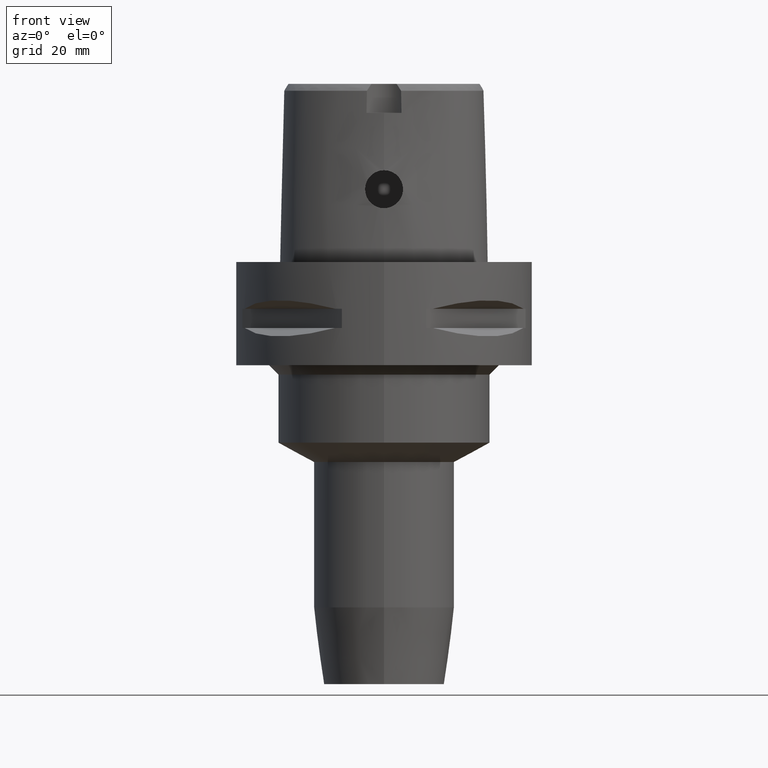
[diagram: clean part render]
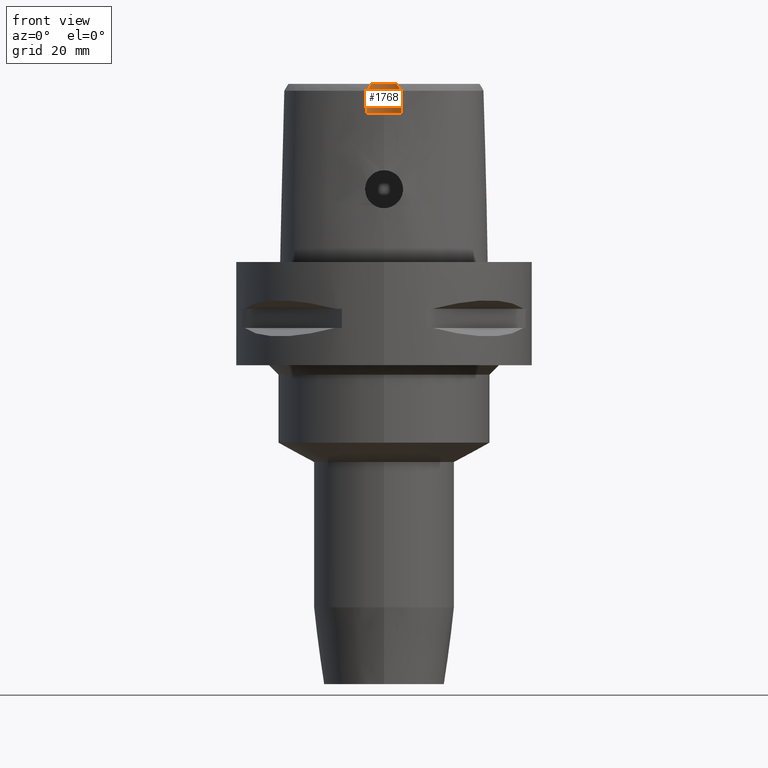
[diagram: same view with one face highlighted and labeled with its STEP entity id]
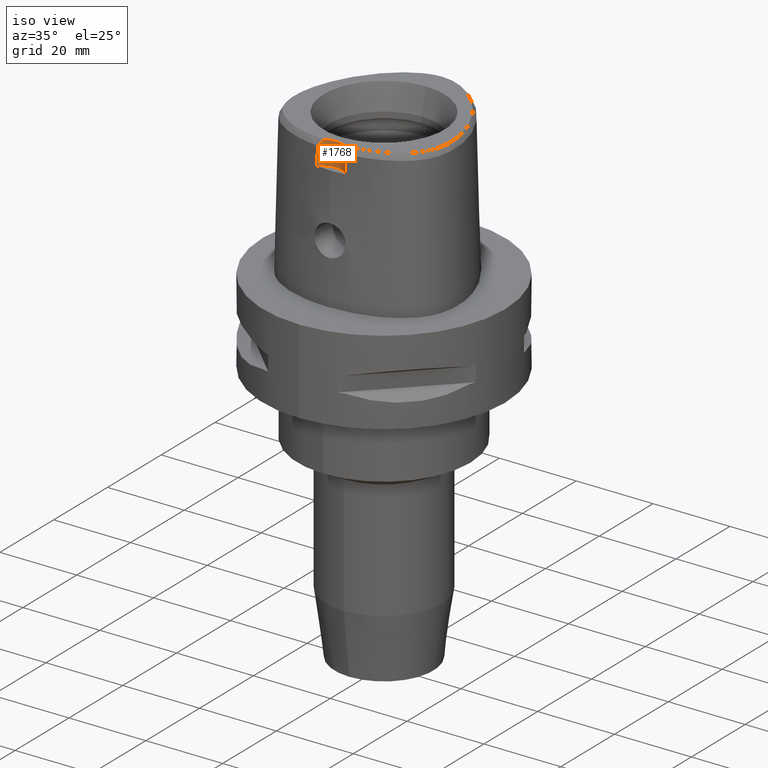
[diagram: same view with one face highlighted and labeled with its STEP entity id]
A machine part, front view. The second image highlights one B-rep face of the part: STEP entity #1768.
A second angle (iso view) of the same face is appended — the face is thin or edge-on in the first view.
In plain terms, the highlighted cylindrical surface (edge-blend (fillet) strip) has radius 5 mm, axis along (0, 0, 1).
Its self-contained STEP definition (entity closure, byte-faithful):
#17=CARTESIAN_POINT('',(0.E0,-2.3E1,3.8E1));
#18=DIRECTION('',(0.E0,0.E0,1.E0));
#19=DIRECTION('',(5.364574965210E-1,8.439273395420E-1,0.E0));
#20=AXIS2_PLACEMENT_3D('',#17,#18,#19);
#26=CARTESIAN_POINT('',(0.E0,-2.3E1,3.8E1));
#27=DIRECTION('',(0.E0,0.E0,1.E0));
#28=DIRECTION('',(0.E0,1.E0,0.E0));
#29=AXIS2_PLACEMENT_3D('',#26,#27,#28);
#136=CARTESIAN_POINT('',(3.637738219117E0,-1.956971420299E1,3.652185956444E1));
#137=CARTESIAN_POINT('',(3.538536273609E0,-1.946451284953E1,3.671639311911E1));
#138=CARTESIAN_POINT('',(3.334098632793E0,-1.926602617850E1,3.708535300827E1));
#139=CARTESIAN_POINT('',(3.014431591359E0,-1.900393218886E1,3.757690690227E1));
#140=CARTESIAN_POINT('',(2.793767706676E0,-1.885122769916E1,3.786560215335E1));
#141=CARTESIAN_POINT('',(2.682287482607E0,-1.878036330229E1,3.8E1));
#189=CARTESIAN_POINT('',(-2.682279906005E0,-1.878035848610E1,3.8E1));
#190=CARTESIAN_POINT('',(-2.797939424828E0,-1.885387923478E1,3.786056636537E1));
#191=CARTESIAN_POINT('',(-3.023213750519E0,-1.901046786247E1,3.756458643908E1));
#192=CARTESIAN_POINT('',(-3.340820240641E0,-1.927223927761E1,3.707376897344E1));
#193=CARTESIAN_POINT('',(-3.541120769139E0,-1.946725359577E1,3.671132817198E1));
#194=CARTESIAN_POINT('',(-3.637738201364E0,-1.956971413237E1,3.652186244848E1));
#249=CARTESIAN_POINT('',(-3.637738201364E0,-1.956971413237E1,3.652186244848E1));
#250=CARTESIAN_POINT('',(-3.649042726833E0,-1.958170231834E1,3.599710491520E1));
#251=CARTESIAN_POINT('',(-3.671106183707E0,-1.960533297179E1,3.494764182412E1));
#252=CARTESIAN_POINT('',(-3.704089539557E0,-1.964135162194E1,3.337369009748E1));
#253=CARTESIAN_POINT('',(-3.726005756395E0,-1.966575923510E1,3.232454432382E1));
#254=CARTESIAN_POINT('',(-3.736696126116E0,-1.967778323257E1,3.18E1));
#1045=CARTESIAN_POINT('',(3.736696120838E0,-1.967778323292E1,3.180000004973E1));
#1046=CARTESIAN_POINT('',(3.726005752326E0,-1.966575923680E1,3.232454431400E1));
#1047=CARTESIAN_POINT('',(3.704089546608E0,-1.964135163374E1,3.337368958251E1));
#1048=CARTESIAN_POINT('',(3.671106187705E0,-1.960533295284E1,3.494764256979E1));
#1049=CARTESIAN_POINT('',(3.649042743234E0,-1.958170238761E1,3.599710209057E1));
#1050=CARTESIAN_POINT('',(3.637738219117E0,-1.956971420299E1,3.652185956444E1));
#1082=CARTESIAN_POINT('',(0.E0,-2.3E1,3.18E1));
#1083=DIRECTION('',(0.E0,0.E0,-1.E0));
#1084=DIRECTION('',(-7.473444622799E-1,6.644367951127E-1,0.E0));
#1085=AXIS2_PLACEMENT_3D('',#1082,#1083,#1084);
#1090=CARTESIAN_POINT('',(0.E0,-2.3E1,3.18E1));
#1091=DIRECTION('',(0.E0,0.E0,-1.E0));
#1092=DIRECTION('',(0.E0,1.E0,0.E0));
#1093=AXIS2_PLACEMENT_3D('',#1090,#1091,#1092);
#1550=CARTESIAN_POINT('',(0.E0,-1.8E1,3.8E1));
#1551=CARTESIAN_POINT('',(-2.682279906007E0,-1.878035848610E1,3.8E1));
#1552=VERTEX_POINT('',#1550);
#1553=VERTEX_POINT('',#1551);
#1554=CARTESIAN_POINT('',(2.682287482605E0,-1.878036330229E1,3.8E1));
#1555=VERTEX_POINT('',#1554);
#1561=VERTEX_POINT('',#136);
#1562=VERTEX_POINT('',#1045);
#1563=CARTESIAN_POINT('',(0.E0,-1.8E1,3.18E1));
#1564=VERTEX_POINT('',#1563);
#1565=CARTESIAN_POINT('',(-3.736722311399E0,-1.967781602444E1,3.18E1));
#1566=VERTEX_POINT('',#1565);
#1567=VERTEX_POINT('',#249);
#1747=CARTESIAN_POINT('',(0.E0,-2.3E1,3.8E1));
#1748=DIRECTION('',(0.E0,0.E0,1.E0));
#1749=DIRECTION('',(0.E0,1.E0,0.E0));
#1750=AXIS2_PLACEMENT_3D('',#1747,#1748,#1749);
#1751=CYLINDRICAL_SURFACE('',#1750,5.E0);
#1752=ORIENTED_EDGE('',*,*,#1732,.F.);
#1753=ORIENTED_EDGE('',*,*,#1730,.F.);
#1755=ORIENTED_EDGE('',*,*,#1754,.F.);
#1757=ORIENTED_EDGE('',*,*,#1756,.F.);
#1759=ORIENTED_EDGE('',*,*,#1758,.F.);
#1761=ORIENTED_EDGE('',*,*,#1760,.F.);
#1763=ORIENTED_EDGE('',*,*,#1762,.F.);
#1765=ORIENTED_EDGE('',*,*,#1764,.F.);
#1766=EDGE_LOOP('',(#1752,#1753,#1755,#1757,#1759,#1761,#1763,#1765));
#1767=FACE_OUTER_BOUND('',#1766,.F.);
#21=CIRCLE('',#20,5.E0);
#30=CIRCLE('',#29,5.E0);
#142=B_SPLINE_CURVE_WITH_KNOTS('',3,(#136,#137,#138,#139,#140,#141),
.UNSPECIFIED.,.F.,.F.,(4,1,1,4),(0.E0,3.333333333333E-1,6.666666666667E-1,1.E0),
.UNSPECIFIED.);
#195=B_SPLINE_CURVE_WITH_KNOTS('',3,(#189,#190,#191,#192,#193,#194),
.UNSPECIFIED.,.F.,.F.,(4,1,1,4),(0.E0,3.333333333333E-1,6.666666666667E-1,1.E0),
.UNSPECIFIED.);
#255=B_SPLINE_CURVE_WITH_KNOTS('',3,(#249,#250,#251,#252,#253,#254),
.UNSPECIFIED.,.F.,.F.,(4,1,1,4),(0.E0,3.333333333333E-1,6.666666666667E-1,1.E0),
.UNSPECIFIED.);
#1051=B_SPLINE_CURVE_WITH_KNOTS('',3,(#1045,#1046,#1047,#1048,#1049,#1050),
.UNSPECIFIED.,.F.,.F.,(4,1,1,4),(0.E0,3.333333333333E-1,6.666666666667E-1,1.E0),
.UNSPECIFIED.);
#1086=CIRCLE('',#1085,5.E0);
#1094=CIRCLE('',#1093,5.E0);
#1730=EDGE_CURVE('',#1555,#1552,#21,.T.);
#1732=EDGE_CURVE('',#1552,#1553,#30,.T.);
#1754=EDGE_CURVE('',#1561,#1555,#142,.T.);
#1756=EDGE_CURVE('',#1562,#1561,#1051,.T.);
#1758=EDGE_CURVE('',#1564,#1562,#1094,.T.);
#1760=EDGE_CURVE('',#1566,#1564,#1086,.T.);
#1762=EDGE_CURVE('',#1567,#1566,#255,.T.);
#1764=EDGE_CURVE('',#1553,#1567,#195,.T.);
#1768=ADVANCED_FACE('',(#1767),#1751,.F.);